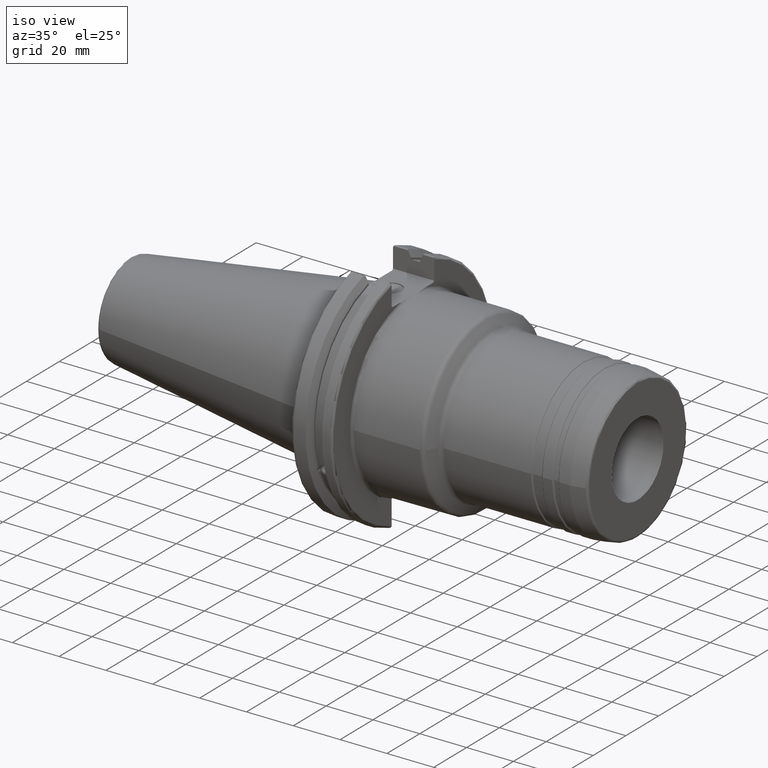
[diagram: clean part render]
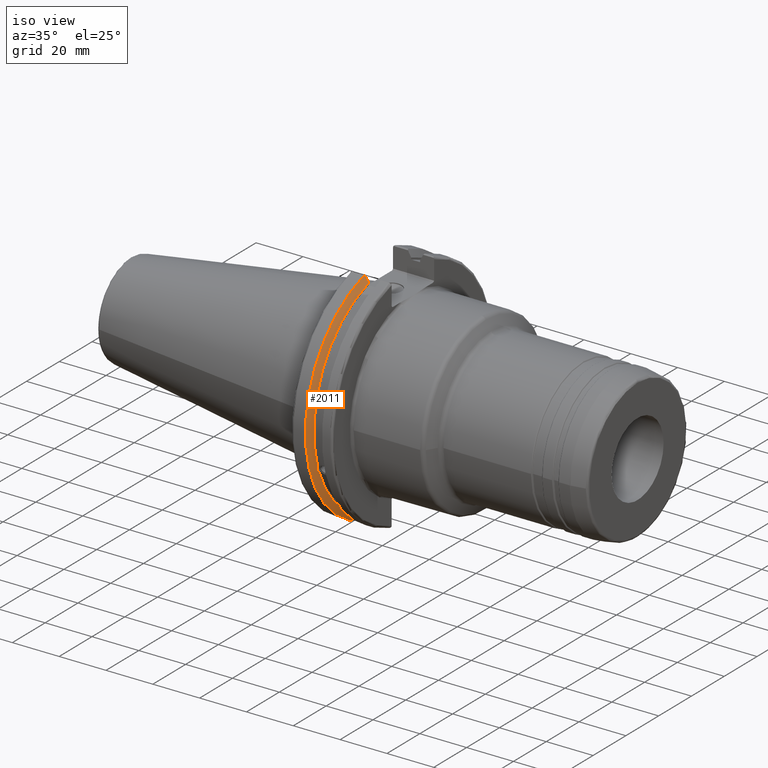
[diagram: same view with one face highlighted and labeled with its STEP entity id]
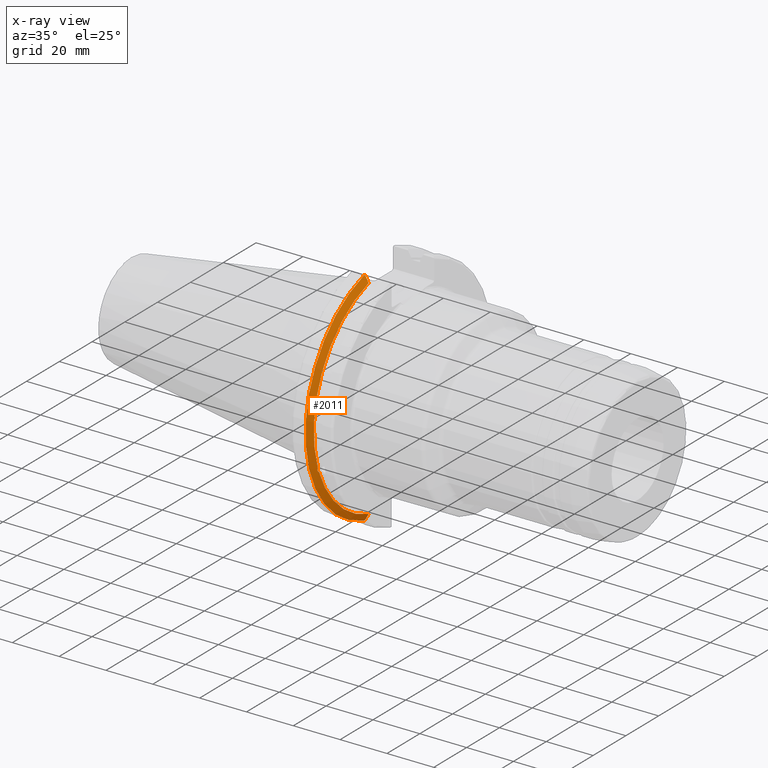
[diagram: x-ray of the same camera — body ghosted, the highlighted face saturated]
A machine part, iso view. The second image highlights one B-rep face of the part: STEP entity #2011.
The next image is the same camera in x-ray: the body ghosted, the highlighted face saturated — about 0% of this face is hidden behind the body in this view.
In plain terms, the highlighted conical surface has half-angle 60 deg.
Its self-contained STEP definition (entity closure, byte-faithful):
#25=(
BOUNDED_CURVE()
B_SPLINE_CURVE(2,(#3787,#3788,#3789),.UNSPECIFIED.,.F.,.F.)
B_SPLINE_CURVE_WITH_KNOTS((3,3),(0.,0.275823910674601),.UNSPECIFIED.)
CURVE()
GEOMETRIC_REPRESENTATION_ITEM()
RATIONAL_B_SPLINE_CURVE((1.,1.00038235573593,1.00012873636487))
REPRESENTATION_ITEM('')
);
#26=(
BOUNDED_CURVE()
B_SPLINE_CURVE(2,(#3799,#3800,#3801),.UNSPECIFIED.,.F.,.F.)
B_SPLINE_CURVE_WITH_KNOTS((3,3),(0.0558332664507492,0.331657177124507),
 .UNSPECIFIED.)
CURVE()
GEOMETRIC_REPRESENTATION_ITEM()
RATIONAL_B_SPLINE_CURVE((1.00012873636807,1.00038235574544,1.))
REPRESENTATION_ITEM('')
);
#27=(
BOUNDED_CURVE()
B_SPLINE_CURVE(2,(#3838,#3839,#3840),.UNSPECIFIED.,.F.,.F.)
B_SPLINE_CURVE_WITH_KNOTS((3,3),(0.,0.0648240472897372),.UNSPECIFIED.)
CURVE()
GEOMETRIC_REPRESENTATION_ITEM()
RATIONAL_B_SPLINE_CURVE((1.,1.00011477674836,1.00019140645948))
REPRESENTATION_ITEM('')
);
#28=(
BOUNDED_CURVE()
B_SPLINE_CURVE(2,(#3846,#3847,#3848),.UNSPECIFIED.,.F.,.F.)
B_SPLINE_CURVE_WITH_KNOTS((3,3),(0.325260944932348,0.390084992222201),
 .UNSPECIFIED.)
CURVE()
GEOMETRIC_REPRESENTATION_ITEM()
RATIONAL_B_SPLINE_CURVE((1.00019140645916,1.00011477674817,1.))
REPRESENTATION_ITEM('')
);
#51=B_SPLINE_CURVE_WITH_KNOTS('',3,(#3349,#3350,#3351,#3352,#3353,#3354,
#3355,#3356,#3357,#3358,#3359,#3360,#3361,#3362),.UNSPECIFIED.,.F.,.F.,
(4,2,2,2,2,2,4),(0.426712868358723,0.441644498666907,0.48031331322313,0.518982127779354,
0.557650942335577,0.596319756891801,0.611251387199986),.UNSPECIFIED.);
#401=CONICAL_SURFACE('',#2275,47.8172386482472,1.0471975511966);
#508=FACE_OUTER_BOUND('',#635,.T.);
#635=EDGE_LOOP('',(#1866,#1867,#1868,#1869,#1870,#1871,#1872,#1873));
#725=CIRCLE('',#2173,46.4219772964944);
#744=CIRCLE('',#2216,49.2125);
#768=CIRCLE('',#2276,46.4219772964944);
#863=VERTEX_POINT('',#3346);
#864=VERTEX_POINT('',#3348);
#881=VERTEX_POINT('',#3439);
#930=VERTEX_POINT('',#3784);
#931=VERTEX_POINT('',#3786);
#934=VERTEX_POINT('',#3798);
#940=VERTEX_POINT('',#3836);
#941=VERTEX_POINT('',#3842);
#1102=EDGE_CURVE('',#864,#863,#51,.T.);
#1126=EDGE_CURVE('',#864,#881,#725,.T.);
#1194=EDGE_CURVE('',#931,#930,#25,.T.);
#1200=EDGE_CURVE('',#934,#881,#26,.T.);
#1210=EDGE_CURVE('',#940,#930,#27,.T.);
#1212=EDGE_CURVE('',#940,#941,#744,.T.);
#1213=EDGE_CURVE('',#934,#941,#28,.T.);
#1275=EDGE_CURVE('',#931,#863,#768,.T.);
#1866=ORIENTED_EDGE('',*,*,#1102,.T.);
#1867=ORIENTED_EDGE('',*,*,#1275,.F.);
#1868=ORIENTED_EDGE('',*,*,#1194,.T.);
#1869=ORIENTED_EDGE('',*,*,#1210,.F.);
#1870=ORIENTED_EDGE('',*,*,#1212,.T.);
#1871=ORIENTED_EDGE('',*,*,#1213,.F.);
#1872=ORIENTED_EDGE('',*,*,#1200,.T.);
#1873=ORIENTED_EDGE('',*,*,#1126,.F.);
#2011=ADVANCED_FACE('',(#508),#401,.T.);
#2173=AXIS2_PLACEMENT_3D('',#3440,#2596,#2597);
#2216=AXIS2_PLACEMENT_3D('',#3844,#2716,#2717);
#2275=AXIS2_PLACEMENT_3D('',#4003,#2865,#2866);
#2276=AXIS2_PLACEMENT_3D('',#4004,#2867,#2868);
#2596=DIRECTION('center_axis',(1.,0.,0.));
#2597=DIRECTION('ref_axis',(0.,0.,-1.));
#2716=DIRECTION('center_axis',(1.,0.,0.));
#2717=DIRECTION('ref_axis',(0.,0.,-1.));
#2865=DIRECTION('center_axis',(-1.,0.,0.));
#2866=DIRECTION('ref_axis',(0.,-1.,-1.22464679914735E-16));
#2867=DIRECTION('center_axis',(1.,0.,0.));
#2868=DIRECTION('ref_axis',(0.,0.,-1.));
#3346=CARTESIAN_POINT('',(9.2191,-43.9096390749305,-15.0646464421033));
#3348=CARTESIAN_POINT('',(9.2191,-43.3201030900029,-16.6843832486479));
#3349=CARTESIAN_POINT('Ctrl Pts',(9.21909999999999,-43.3201030900029,-16.6843832486479));
#3350=CARTESIAN_POINT('Ctrl Pts',(9.20211843903391,-43.3613106941341,-16.6592273018006));
#3351=CARTESIAN_POINT('Ctrl Pts',(9.18608675403322,-43.4012416983557,-16.6326763251437));
#3352=CARTESIAN_POINT('Ctrl Pts',(9.13238673845037,-43.5391037343221,-16.5325130832406));
#3353=CARTESIAN_POINT('Ctrl Pts',(9.09621610663555,-43.6406982153491,-16.4411807953719));
#3354=CARTESIAN_POINT('Ctrl Pts',(9.04690868251975,-43.8110833825827,-16.2291323464527));
#3355=CARTESIAN_POINT('Ctrl Pts',(9.0341,-43.8794096049168,-16.10796730316));
#3356=CARTESIAN_POINT('Ctrl Pts',(9.03409999999999,-43.9675796948952,-15.8657219718732));
#3357=CARTESIAN_POINT('Ctrl Pts',(9.04690868251975,-43.9931221605126,-15.7289849146254));
#3358=CARTESIAN_POINT('Ctrl Pts',(9.09621610663555,-43.9989016655819,-15.4570249042867));
#3359=CARTESIAN_POINT('Ctrl Pts',(9.13238673845037,-43.9797830409458,-15.3217566390708));
#3360=CARTESIAN_POINT('Ctrl Pts',(9.18608675403322,-43.9385582852181,-15.1564111356409));
#3361=CARTESIAN_POINT('Ctrl Pts',(9.20211843903391,-43.9250360001461,-15.1104047527575));
#3362=CARTESIAN_POINT('Ctrl Pts',(9.2191,-43.9096390749305,-15.0646464421033));
#3439=CARTESIAN_POINT('',(9.2191,-12.95,-44.5791147973604));
#3440=CARTESIAN_POINT('Origin',(9.2191,0.,0.));
#3784=CARTESIAN_POINT('',(7.88638960562424,-12.95,46.9780755322918));
#3786=CARTESIAN_POINT('',(9.2191,-12.95,44.5791147973604));
#3787=CARTESIAN_POINT('Ctrl Pts',(9.2191,-12.95,44.5791147973604));
#3788=CARTESIAN_POINT('Ctrl Pts',(8.57020449055857,-12.95,45.7494966802148));
#3789=CARTESIAN_POINT('Ctrl Pts',(7.88638960562424,-12.95,46.9780755322918));
#3798=CARTESIAN_POINT('',(7.88638960562425,-12.95,-46.9780755322918));
#3799=CARTESIAN_POINT('Ctrl Pts',(7.88638960562425,-12.95,-46.9780755322918));
#3800=CARTESIAN_POINT('Ctrl Pts',(8.57020449054166,-12.95,-45.7494966802452));
#3801=CARTESIAN_POINT('Ctrl Pts',(9.2191,-12.95,-44.5791147973604));
#3836=CARTESIAN_POINT('',(7.60799096595127,-13.4317035994433,47.3440544806494));
#3838=CARTESIAN_POINT('Ctrl Pts',(7.60799096595126,-13.4317035994433,47.3440544806494));
#3839=CARTESIAN_POINT('Ctrl Pts',(7.7482689666382,-13.1896660169966,47.1601640966265));
#3840=CARTESIAN_POINT('Ctrl Pts',(7.88638960562424,-12.95,46.9780755322918));
#3842=CARTESIAN_POINT('',(7.60799096595127,-13.4317035994433,-47.3440544806494));
#3844=CARTESIAN_POINT('Origin',(7.60799096595127,0.,0.));
#3846=CARTESIAN_POINT('Ctrl Pts',(7.88638960562425,-12.95,-46.9780755322918));
#3847=CARTESIAN_POINT('Ctrl Pts',(7.74826896663813,-13.1896660169967,-47.1601640966265));
#3848=CARTESIAN_POINT('Ctrl Pts',(7.60799096595127,-13.4317035994434,-47.3440544806494));
#4003=CARTESIAN_POINT('Origin',(8.41354548297563,0.,0.));
#4004=CARTESIAN_POINT('Origin',(9.2191,0.,0.));